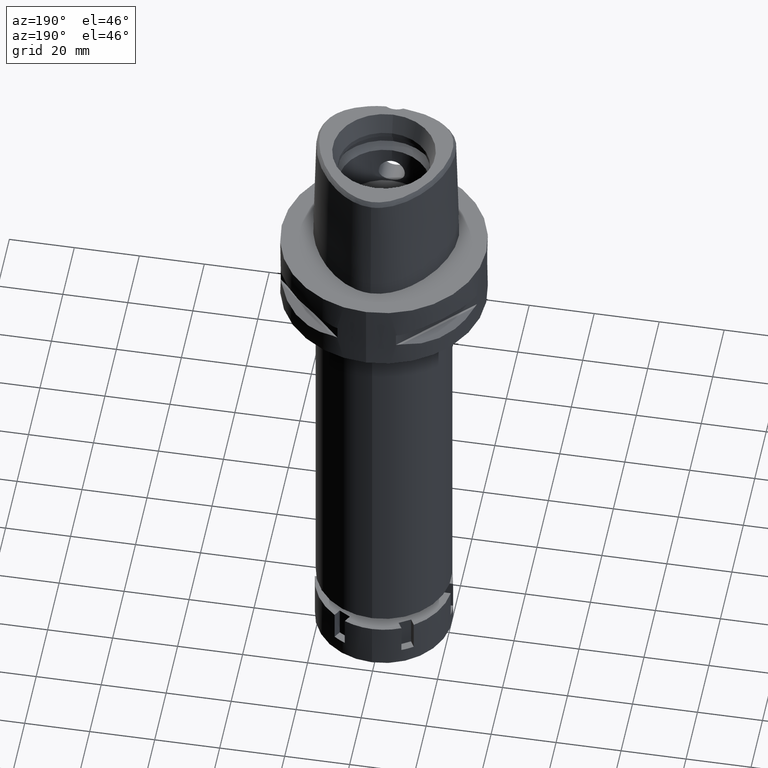
[diagram: clean part render]
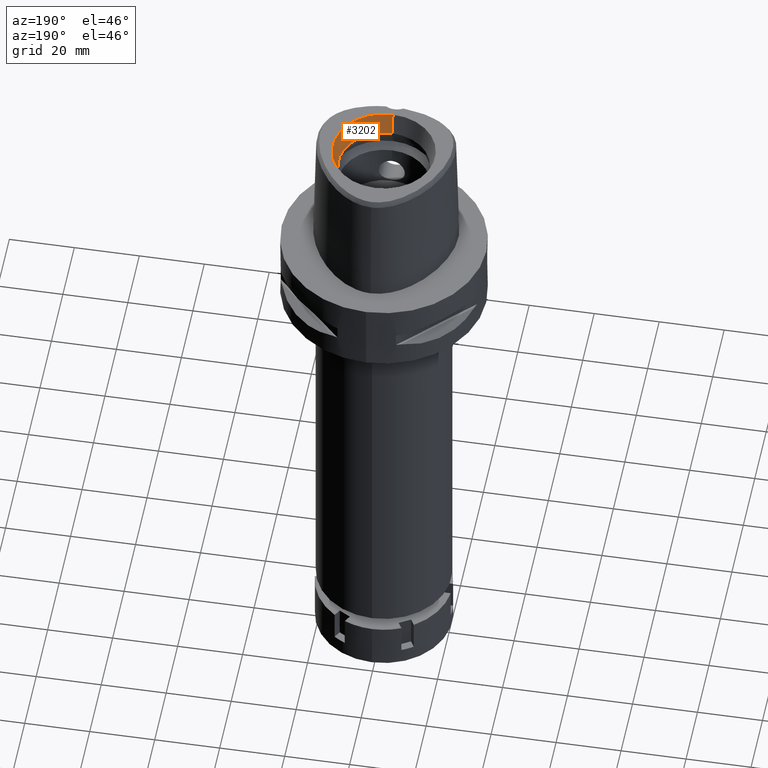
[diagram: same view with one face highlighted and labeled with its STEP entity id]
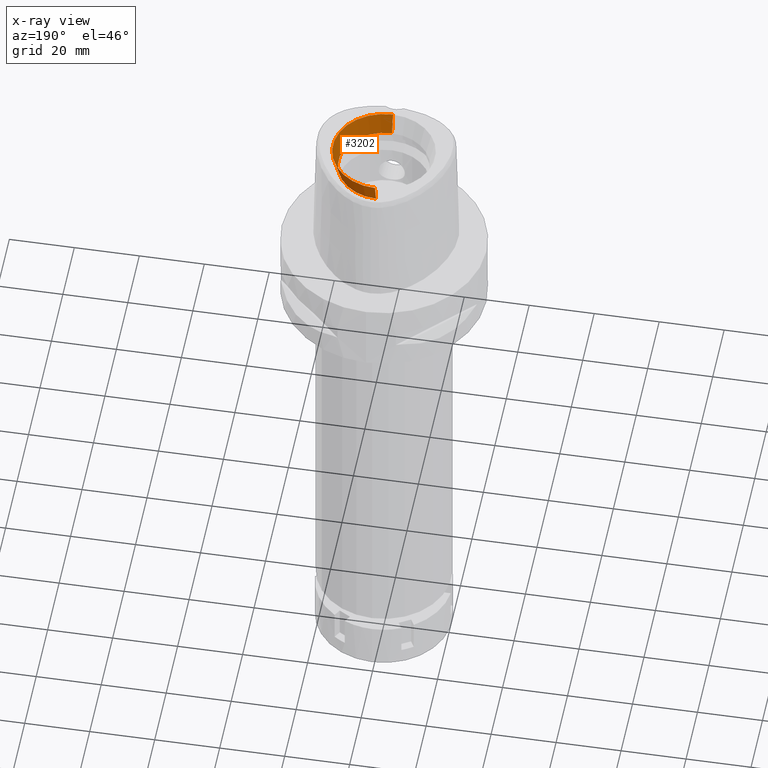
[diagram: x-ray of the same camera — body ghosted, the highlighted face saturated]
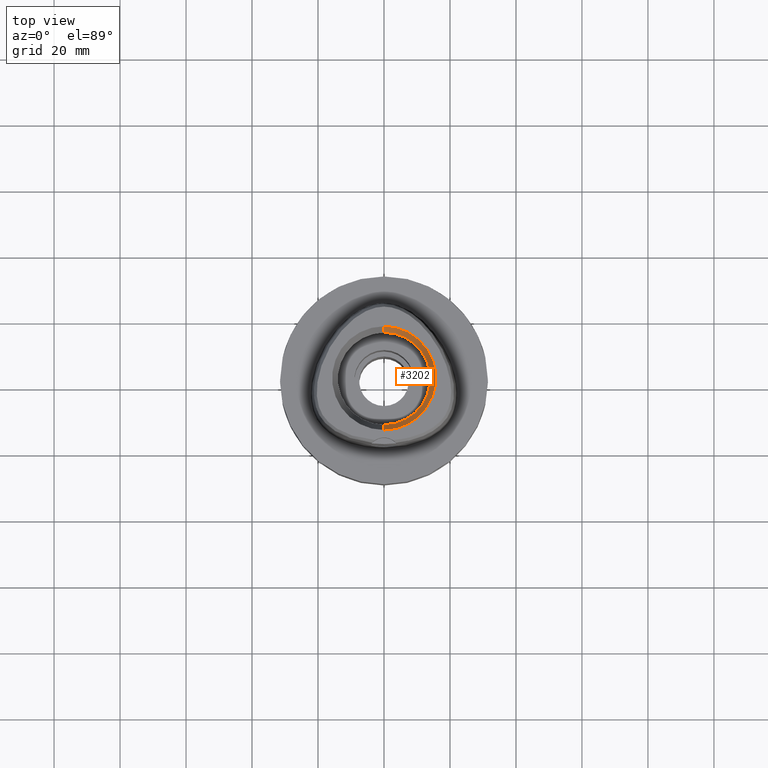
[diagram: same view with one face highlighted and labeled with its STEP entity id]
A machine part, auxiliary view. The second image highlights one B-rep face of the part: STEP entity #3202.
The next image is the same camera in x-ray: the body ghosted, the highlighted face saturated — about 0% of this face is hidden behind the body in this view.
A second angle (top view) of the same face is appended — the face is thin or edge-on in the first view.
In plain terms, the highlighted conical surface has half-angle 15 deg.
Its self-contained STEP definition (entity closure, byte-faithful):
#414 = CIRCLE ( 'NONE', #1134, 15.71487483155999776 ) ;
#417 = EDGE_CURVE ( 'NONE', #3514, #3878, #3278, .T. ) ;
#566 = DIRECTION ( 'NONE',  ( 0.0000000000000000000, 0.0000000000000000000, 1.000000000000000000 ) ) ;
#913 = CARTESIAN_POINT ( 'NONE',  ( 0.0000000000000000000, 0.0000000000000000000, 34.79999999999999716 ) ) ;
#1091 = LINE ( 'NONE', #3262, #5446 ) ;
#1112 = EDGE_CURVE ( 'NONE', #3514, #3431, #5559, .T. ) ;
#1115 = AXIS2_PLACEMENT_3D ( 'NONE', #913, #3103, #3743 ) ;
#1134 = AXIS2_PLACEMENT_3D ( 'NONE', #2404, #1514, #4887 ) ;
#1350 = FACE_OUTER_BOUND ( 'NONE', #1954, .T. ) ;
#1514 = DIRECTION ( 'NONE',  ( 0.0000000000000000000, 0.0000000000000000000, 1.000000000000000000 ) ) ;
#1954 = EDGE_LOOP ( 'NONE', ( #4828, #2390, #2008, #4559 ) ) ;
#2008 = ORIENTED_EDGE ( 'NONE', *, *, #1112, .T. ) ;
#2390 = ORIENTED_EDGE ( 'NONE', *, *, #417, .F. ) ;
#2404 = CARTESIAN_POINT ( 'NONE',  ( 0.0000000000000000000, 0.0000000000000000000, 38.00000000000000000 ) ) ;
#2613 = CARTESIAN_POINT ( 'NONE',  ( 0.0000000000000000000, 0.0000000000000000000, 31.60000000000000142 ) ) ;
#2723 = CARTESIAN_POINT ( 'NONE',  ( 0.0000000000000000000, 15.71487483155999776, 38.00000000000000000 ) ) ;
#2815 = AXIS2_PLACEMENT_3D ( 'NONE', #2613, #566, #5307 ) ;
#3103 = DIRECTION ( 'NONE',  ( 0.0000000000000000000, 0.0000000000000000000, 1.000000000000000000 ) ) ;
#3117 = VERTEX_POINT ( 'NONE', #2723 ) ;
#3120 = CARTESIAN_POINT ( 'NONE',  ( 0.0000000000000000000, -14.00000000000000000, 31.60000000000000142 ) ) ;
#3174 = DIRECTION ( 'NONE',  ( 0.0000000000000000000, 0.2588190451025869088, 0.9659258262890505486 ) ) ;
#3202 = ADVANCED_FACE ( 'NONE', ( #1350 ), #5090, .F. ) ;
#3262 = CARTESIAN_POINT ( 'NONE',  ( 0.0000000000000000000, 14.00000000000000000, 31.60000000000000142 ) ) ;
#3278 = CIRCLE ( 'NONE', #2815, 14.00000000000000000 ) ;
#3431 = VERTEX_POINT ( 'NONE', #4930 ) ;
#3514 = VERTEX_POINT ( 'NONE', #3120 ) ;
#3577 = DIRECTION ( 'NONE',  ( 0.0000000000000000000, -0.2588190451025869088, 0.9659258262890505486 ) ) ;
#3634 = VECTOR ( 'NONE', #3577, 1000.000000000000000 ) ;
#3735 = EDGE_CURVE ( 'NONE', #3878, #3117, #1091, .T. ) ;
#3743 = DIRECTION ( 'NONE',  ( 0.0000000000000000000, 1.000000000000000000, 0.0000000000000000000 ) ) ;
#3869 = CARTESIAN_POINT ( 'NONE',  ( 0.0000000000000000000, -14.00000000000000000, 31.60000000000000142 ) ) ;
#3878 = VERTEX_POINT ( 'NONE', #4732 ) ;
#4559 = ORIENTED_EDGE ( 'NONE', *, *, #5444, .T. ) ;
#4732 = CARTESIAN_POINT ( 'NONE',  ( 0.0000000000000000000, 14.00000000000000000, 31.60000000000000142 ) ) ;
#4828 = ORIENTED_EDGE ( 'NONE', *, *, #3735, .F. ) ;
#4887 = DIRECTION ( 'NONE',  ( 0.0000000000000000000, -1.000000000000000000, 0.0000000000000000000 ) ) ;
#4930 = CARTESIAN_POINT ( 'NONE',  ( 0.0000000000000000000, -15.71487483155999776, 38.00000000000000000 ) ) ;
#5090 = CONICAL_SURFACE ( 'NONE', #1115, 14.85743741577999977, 0.2617993877991000029 ) ;
#5307 = DIRECTION ( 'NONE',  ( 0.0000000000000000000, -1.000000000000000000, 0.0000000000000000000 ) ) ;
#5444 = EDGE_CURVE ( 'NONE', #3431, #3117, #414, .T. ) ;
#5446 = VECTOR ( 'NONE', #3174, 1000.000000000000000 ) ;
#5559 = LINE ( 'NONE', #3869, #3634 ) ;